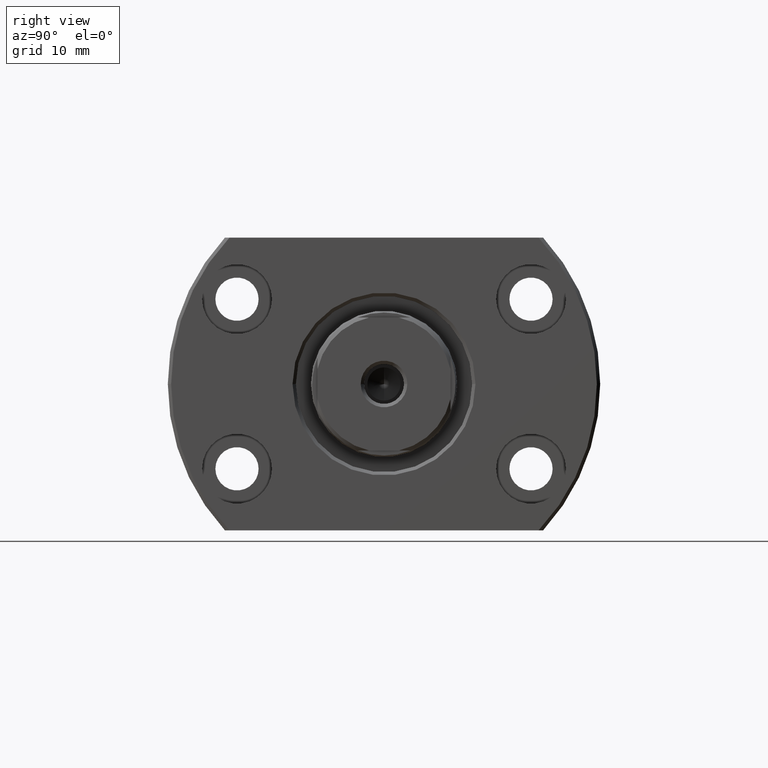
[diagram: clean part render]
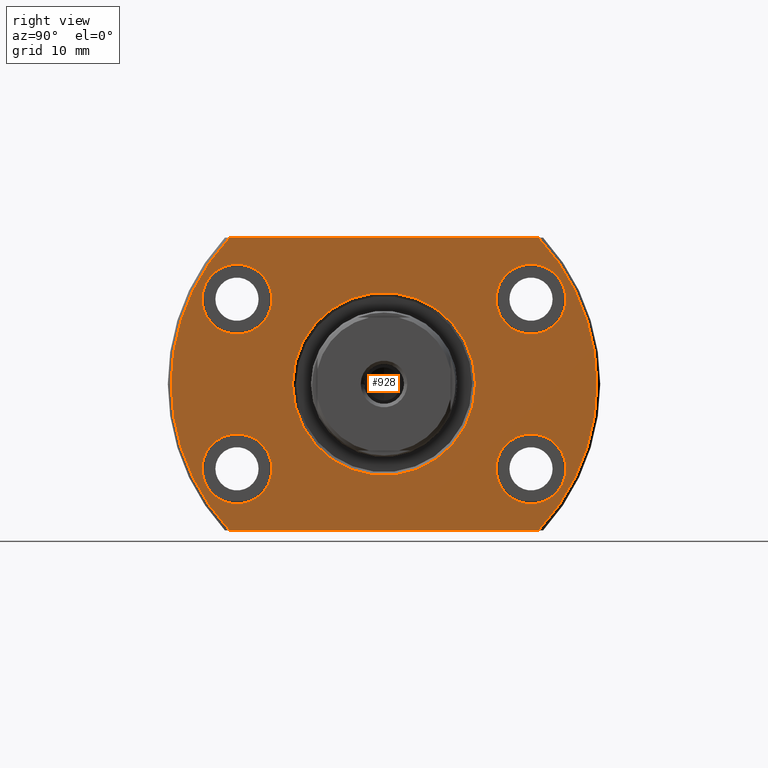
[diagram: same view with one face highlighted and labeled with its STEP entity id]
A machine part, right view. The second image highlights one B-rep face of the part: STEP entity #928.
In plain terms, the highlighted planar face has unit normal (-1, -0, 0).
Its self-contained STEP definition (entity closure, byte-faithful):
#14 = FACE_BOUND ( 'NONE', #1622, .T. ) ;
#25 = CARTESIAN_POINT ( 'NONE',  ( 27.50000000000064304, 22.09999999999920917, 12.74999999999999822 ) ) ;
#58 = CARTESIAN_POINT ( 'NONE',  ( 27.50000000000000355, 23.23790007724450035, 22.00000000000000355 ) ) ;
#62 = LINE ( 'NONE', #812, #2437 ) ;
#67 = AXIS2_PLACEMENT_3D ( 'NONE', #2343, #131, #3105 ) ;
#90 = DIRECTION ( 'NONE',  ( 2.907726969256361977E-14, 1.000000000000000000, 0.000000000000000000 ) ) ;
#113 = CARTESIAN_POINT ( 'NONE',  ( 27.50000000000000355, -7.068290497865035784E-13, 0.000000000000000000 ) ) ;
#125 = AXIS2_PLACEMENT_3D ( 'NONE', #3153, #916, #651 ) ;
#131 = DIRECTION ( 'NONE',  ( 1.000000000000000000, -2.886466111666351885E-14, 0.000000000000000000 ) ) ;
#135 = DIRECTION ( 'NONE',  ( 1.000000000000000000, -2.887798767815668620E-14, -6.310887241768094443E-30 ) ) ;
#232 = CIRCLE ( 'NONE', #1556, 32.00000000000000000 ) ;
#262 = EDGE_CURVE ( 'NONE', #3101, #3010, #62, .T. ) ;
#329 = DIRECTION ( 'NONE',  ( -1.000000000000000000, -1.335978326342566810E-17, 0.000000000000000000 ) ) ;
#372 = ORIENTED_EDGE ( 'NONE', *, *, #1829, .F. ) ;
#375 = ORIENTED_EDGE ( 'NONE', *, *, #399, .F. ) ;
#387 = CIRCLE ( 'NONE', #2494, 5.250000000000000888 ) ;
#391 = ORIENTED_EDGE ( 'NONE', *, *, #1334, .T. ) ;
#398 = VERTEX_POINT ( 'NONE', #2243 ) ;
#399 = EDGE_CURVE ( 'NONE', #2472, #2167, #1662, .T. ) ;
#400 = CARTESIAN_POINT ( 'NONE',  ( 27.50000000000049027, 16.84999999999920917, 12.74999999999999822 ) ) ;
#406 = ORIENTED_EDGE ( 'NONE', *, *, #2057, .F. ) ;
#444 = CARTESIAN_POINT ( 'NONE',  ( 27.49999999999936406, -22.10000000000079368, -12.75000000000000178 ) ) ;
#457 = EDGE_LOOP ( 'NONE', ( #3124, #406 ) ) ;
#462 = FACE_BOUND ( 'NONE', #457, .T. ) ;
#471 = VERTEX_POINT ( 'NONE', #2015 ) ;
#472 = EDGE_LOOP ( 'NONE', ( #865, #2707, #391, #2991, #1531 ) ) ;
#476 = CARTESIAN_POINT ( 'NONE',  ( 27.50000000000000355, 13.74999999999850075, 0.000000000000000000 ) ) ;
#527 = VERTEX_POINT ( 'NONE', #1701 ) ;
#642 = AXIS2_PLACEMENT_3D ( 'NONE', #1089, #1842, #90 ) ;
#651 = DIRECTION ( 'NONE',  ( 0.000000000000000000, 1.000000000000000000, 0.000000000000000000 ) ) ;
#687 = CIRCLE ( 'NONE', #2698, 32.00000000000000000 ) ;
#703 = DIRECTION ( 'NONE',  ( 0.000000000000000000, -1.000000000000000000, 0.000000000000000000 ) ) ;
#713 = CARTESIAN_POINT ( 'NONE',  ( 27.49999999999936406, -22.10000000000079368, 12.74999999999999822 ) ) ;
#772 = EDGE_CURVE ( 'NONE', #2863, #527, #3133, .T. ) ;
#806 = VERTEX_POINT ( 'NONE', #1684 ) ;
#807 = CARTESIAN_POINT ( 'NONE',  ( 27.50000000000000355, 23.92174742781206831, 22.00000000000000355 ) ) ;
#812 = CARTESIAN_POINT ( 'NONE',  ( 27.50000000000000355, -32.00000000000000000, -22.00000000000000355 ) ) ;
#835 = CARTESIAN_POINT ( 'NONE',  ( 27.50000000000079581, 27.34999999999921272, -12.75000000000000178 ) ) ;
#841 = AXIS2_PLACEMENT_3D ( 'NONE', #25, #1022, #2003 ) ;
#865 = ORIENTED_EDGE ( 'NONE', *, *, #2073, .F. ) ;
#881 = EDGE_CURVE ( 'NONE', #2918, #2625, #1355, .T. ) ;
#904 = CARTESIAN_POINT ( 'NONE',  ( 27.50000000000064304, 22.09999999999920917, -12.75000000000000178 ) ) ;
#906 = DIRECTION ( 'NONE',  ( 2.907726969256361977E-14, 1.000000000000000000, 0.000000000000000000 ) ) ;
#916 = DIRECTION ( 'NONE',  ( 1.000000000000000000, 1.335978326342566810E-17, -0.000000000000000000 ) ) ;
#928 = ADVANCED_FACE ( 'NONE', ( #1253, #2931, #462, #2475, #14, #2989 ), #1974, .F. ) ;
#949 = CIRCLE ( 'NONE', #3020, 5.250000000000000888 ) ;
#958 = DIRECTION ( 'NONE',  ( 1.000000000000000000, -2.887798767815668620E-14, -6.310887241768094443E-30 ) ) ;
#984 = DIRECTION ( 'NONE',  ( -0.000000000000000000, 1.000000000000000000, 0.000000000000000000 ) ) ;
#990 = CARTESIAN_POINT ( 'NONE',  ( 27.50000000000000355, 3.673940397442059375E-16, 0.000000000000000000 ) ) ;
#1004 = CARTESIAN_POINT ( 'NONE',  ( 27.49999999999936406, -22.10000000000079368, 12.74999999999999822 ) ) ;
#1015 = DIRECTION ( 'NONE',  ( -1.000000000000000000, -1.335978326342566810E-17, 0.000000000000000000 ) ) ;
#1021 = VERTEX_POINT ( 'NONE', #1960 ) ;
#1022 = DIRECTION ( 'NONE',  ( 1.000000000000000000, -2.886466111666351885E-14, 0.000000000000000000 ) ) ;
#1029 = DIRECTION ( 'NONE',  ( 1.335978326342566810E-17, -1.000000000000000000, 0.000000000000000000 ) ) ;
#1045 = EDGE_LOOP ( 'NONE', ( #1267, #1538 ) ) ;
#1089 = CARTESIAN_POINT ( 'NONE',  ( 27.49999999999936406, -22.10000000000079368, -12.75000000000000178 ) ) ;
#1107 = DIRECTION ( 'NONE',  ( 1.000000000000000000, -2.887798767815668620E-14, -6.310887241768094443E-30 ) ) ;
#1144 = CARTESIAN_POINT ( 'NONE',  ( 27.49999999999921130, -27.35000000000079368, 12.74999999999999822 ) ) ;
#1151 = CIRCLE ( 'NONE', #1710, 13.74999999999920774 ) ;
#1153 = AXIS2_PLACEMENT_3D ( 'NONE', #713, #1693, #3003 ) ;
#1171 = CARTESIAN_POINT ( 'NONE',  ( 27.50000000000000355, 23.23790007724450035, -22.00000000000000355 ) ) ;
#1183 = ORIENTED_EDGE ( 'NONE', *, *, #1383, .F. ) ;
#1187 = EDGE_CURVE ( 'NONE', #2625, #2918, #1151, .T. ) ;
#1192 = EDGE_CURVE ( 'NONE', #3010, #2054, #232, .T. ) ;
#1253 = FACE_BOUND ( 'NONE', #1045, .T. ) ;
#1267 = ORIENTED_EDGE ( 'NONE', *, *, #1187, .T. ) ;
#1296 = DIRECTION ( 'NONE',  ( 1.000000000000000000, 1.335978326342566810E-17, -0.000000000000000000 ) ) ;
#1314 = CARTESIAN_POINT ( 'NONE',  ( 27.50000000000000355, 3.673940397442059375E-16, 0.000000000000000000 ) ) ;
#1334 = EDGE_CURVE ( 'NONE', #398, #3101, #3125, .T. ) ;
#1355 = CIRCLE ( 'NONE', #3184, 13.74999999999920774 ) ;
#1375 = DIRECTION ( 'NONE',  ( -1.000000000000000000, -1.335978326342566810E-17, 0.000000000000000000 ) ) ;
#1383 = EDGE_CURVE ( 'NONE', #1798, #1021, #949, .T. ) ;
#1449 = EDGE_CURVE ( 'NONE', #527, #2863, #2600, .T. ) ;
#1455 = CIRCLE ( 'NONE', #67, 5.250000000000000888 ) ;
#1524 = EDGE_CURVE ( 'NONE', #806, #2355, #2441, .T. ) ;
#1531 = ORIENTED_EDGE ( 'NONE', *, *, #1192, .T. ) ;
#1538 = ORIENTED_EDGE ( 'NONE', *, *, #881, .T. ) ;
#1551 = CARTESIAN_POINT ( 'NONE',  ( 27.50000000000064304, 22.09999999999920917, -12.75000000000000178 ) ) ;
#1556 = AXIS2_PLACEMENT_3D ( 'NONE', #1314, #2536, #2305 ) ;
#1589 = CARTESIAN_POINT ( 'NONE',  ( 27.50000000000079581, 27.34999999999921272, 12.74999999999999822 ) ) ;
#1590 = EDGE_CURVE ( 'NONE', #471, #398, #687, .T. ) ;
#1622 = EDGE_LOOP ( 'NONE', ( #1183, #2320 ) ) ;
#1662 = CIRCLE ( 'NONE', #841, 5.250000000000000888 ) ;
#1684 = CARTESIAN_POINT ( 'NONE',  ( 27.49999999999951683, -16.85000000000079012, 12.74999999999999822 ) ) ;
#1693 = DIRECTION ( 'NONE',  ( 1.000000000000000000, -2.887798767815668620E-14, -6.310887241768094443E-30 ) ) ;
#1701 = CARTESIAN_POINT ( 'NONE',  ( 27.49999999999921130, -27.35000000000079368, -12.75000000000000178 ) ) ;
#1710 = AXIS2_PLACEMENT_3D ( 'NONE', #113, #329, #3046 ) ;
#1737 = DIRECTION ( 'NONE',  ( 2.907726969256361977E-14, 1.000000000000000000, 0.000000000000000000 ) ) ;
#1753 = DIRECTION ( 'NONE',  ( 0.000000000000000000, 1.000000000000000000, 0.000000000000000000 ) ) ;
#1788 = DIRECTION ( 'NONE',  ( -1.335978326342566810E-17, 1.000000000000000000, -0.000000000000000000 ) ) ;
#1798 = VERTEX_POINT ( 'NONE', #835 ) ;
#1829 = EDGE_CURVE ( 'NONE', #2167, #2472, #1455, .T. ) ;
#1841 = DIRECTION ( 'NONE',  ( 2.907726969256361977E-14, 1.000000000000000000, 0.000000000000000000 ) ) ;
#1842 = DIRECTION ( 'NONE',  ( 1.000000000000000000, -2.887798767815668620E-14, -6.310887241768094443E-30 ) ) ;
#1851 = DIRECTION ( 'NONE',  ( 2.907726969256361977E-14, 1.000000000000000000, 0.000000000000000000 ) ) ;
#1860 = AXIS2_PLACEMENT_3D ( 'NONE', #444, #958, #906 ) ;
#1960 = CARTESIAN_POINT ( 'NONE',  ( 27.50000000000049027, 16.84999999999920917, -12.75000000000000178 ) ) ;
#1974 = PLANE ( 'NONE',  #3028 ) ;
#1989 = DIRECTION ( 'NONE',  ( 1.000000000000000000, -2.887798767815668620E-14, -6.310887241768094443E-30 ) ) ;
#1996 = CARTESIAN_POINT ( 'NONE',  ( 27.50000000000000355, -32.00000000000000000, 0.000000000000000000 ) ) ;
#2003 = DIRECTION ( 'NONE',  ( 2.907726969256361977E-14, 1.000000000000000000, 0.000000000000000000 ) ) ;
#2015 = CARTESIAN_POINT ( 'NONE',  ( 27.50000000000000355, -23.23790007724450035, 22.00000000000000355 ) ) ;
#2047 = CARTESIAN_POINT ( 'NONE',  ( 27.49999999999951683, -16.85000000000079012, -12.75000000000000178 ) ) ;
#2054 = VERTEX_POINT ( 'NONE', #58 ) ;
#2057 = EDGE_CURVE ( 'NONE', #2355, #806, #387, .T. ) ;
#2073 = EDGE_CURVE ( 'NONE', #471, #2054, #3037, .T. ) ;
#2083 = AXIS2_PLACEMENT_3D ( 'NONE', #1551, #1107, #1841 ) ;
#2167 = VERTEX_POINT ( 'NONE', #1589 ) ;
#2237 = VECTOR ( 'NONE', #984, 1000.000000000000000 ) ;
#2243 = CARTESIAN_POINT ( 'NONE',  ( 27.50000000000000355, -32.00000000000000000, 0.000000000000000000 ) ) ;
#2305 = DIRECTION ( 'NONE',  ( 0.000000000000000000, 1.000000000000000000, 0.000000000000000000 ) ) ;
#2320 = ORIENTED_EDGE ( 'NONE', *, *, #2504, .F. ) ;
#2343 = CARTESIAN_POINT ( 'NONE',  ( 27.50000000000064304, 22.09999999999920917, 12.74999999999999822 ) ) ;
#2355 = VERTEX_POINT ( 'NONE', #1144 ) ;
#2437 = VECTOR ( 'NONE', #1788, 1000.000000000000000 ) ;
#2441 = CIRCLE ( 'NONE', #1153, 5.250000000000000888 ) ;
#2472 = VERTEX_POINT ( 'NONE', #400 ) ;
#2475 = FACE_BOUND ( 'NONE', #3220, .T. ) ;
#2494 = AXIS2_PLACEMENT_3D ( 'NONE', #1004, #1989, #1737 ) ;
#2498 = ORIENTED_EDGE ( 'NONE', *, *, #772, .F. ) ;
#2504 = EDGE_CURVE ( 'NONE', #1021, #1798, #2760, .T. ) ;
#2536 = DIRECTION ( 'NONE',  ( 1.000000000000000000, 1.335978326342566810E-17, -0.000000000000000000 ) ) ;
#2600 = CIRCLE ( 'NONE', #1860, 5.250000000000000888 ) ;
#2625 = VERTEX_POINT ( 'NONE', #476 ) ;
#2698 = AXIS2_PLACEMENT_3D ( 'NONE', #990, #1296, #1753 ) ;
#2707 = ORIENTED_EDGE ( 'NONE', *, *, #1590, .T. ) ;
#2733 = CARTESIAN_POINT ( 'NONE',  ( 27.50000000000000355, -23.23790007724450035, -22.00000000000000355 ) ) ;
#2760 = CIRCLE ( 'NONE', #2083, 5.250000000000000888 ) ;
#2826 = CARTESIAN_POINT ( 'NONE',  ( 27.50000000000000355, -13.75000000000070699, 1.683889348827610851E-15 ) ) ;
#2856 = EDGE_LOOP ( 'NONE', ( #372, #375 ) ) ;
#2863 = VERTEX_POINT ( 'NONE', #2047 ) ;
#2918 = VERTEX_POINT ( 'NONE', #2826 ) ;
#2931 = FACE_BOUND ( 'NONE', #2856, .T. ) ;
#2934 = ORIENTED_EDGE ( 'NONE', *, *, #1449, .F. ) ;
#2989 = FACE_OUTER_BOUND ( 'NONE', #472, .T. ) ;
#2991 = ORIENTED_EDGE ( 'NONE', *, *, #262, .T. ) ;
#3003 = DIRECTION ( 'NONE',  ( 2.907726969256361977E-14, 1.000000000000000000, 0.000000000000000000 ) ) ;
#3010 = VERTEX_POINT ( 'NONE', #1171 ) ;
#3020 = AXIS2_PLACEMENT_3D ( 'NONE', #904, #135, #1851 ) ;
#3028 = AXIS2_PLACEMENT_3D ( 'NONE', #1996, #1015, #1029 ) ;
#3037 = LINE ( 'NONE', #807, #2237 ) ;
#3046 = DIRECTION ( 'NONE',  ( 0.000000000000000000, -1.000000000000000000, 0.000000000000000000 ) ) ;
#3101 = VERTEX_POINT ( 'NONE', #2733 ) ;
#3105 = DIRECTION ( 'NONE',  ( 2.907726969256361977E-14, 1.000000000000000000, 0.000000000000000000 ) ) ;
#3124 = ORIENTED_EDGE ( 'NONE', *, *, #1524, .F. ) ;
#3125 = CIRCLE ( 'NONE', #125, 32.00000000000000000 ) ;
#3133 = CIRCLE ( 'NONE', #642, 5.250000000000000888 ) ;
#3145 = CARTESIAN_POINT ( 'NONE',  ( 27.50000000000000355, -7.068290497865035784E-13, 0.000000000000000000 ) ) ;
#3153 = CARTESIAN_POINT ( 'NONE',  ( 27.50000000000000355, 3.673940397442059375E-16, 0.000000000000000000 ) ) ;
#3184 = AXIS2_PLACEMENT_3D ( 'NONE', #3145, #1375, #703 ) ;
#3220 = EDGE_LOOP ( 'NONE', ( #2498, #2934 ) ) ;